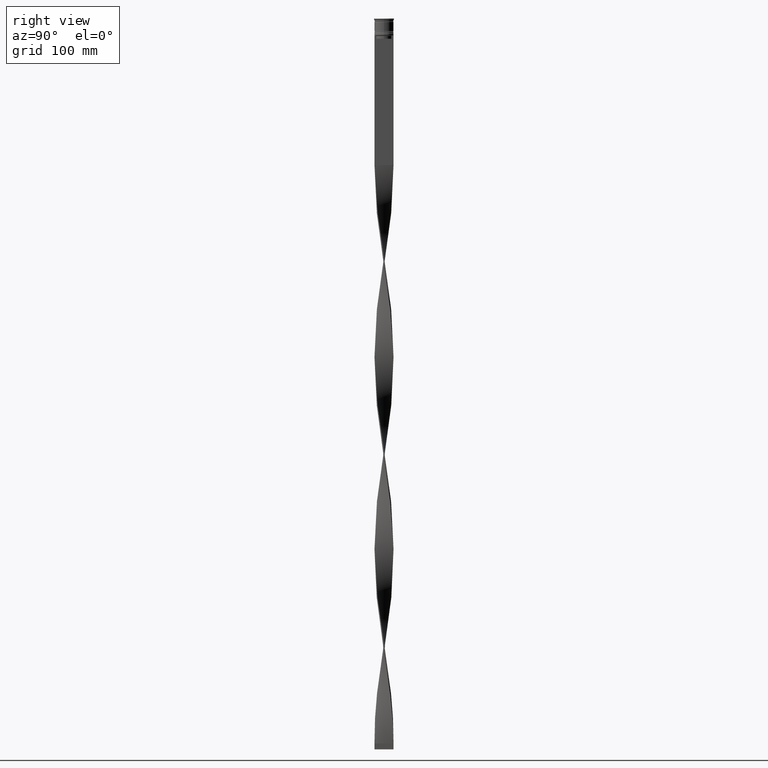
[diagram: clean part render]
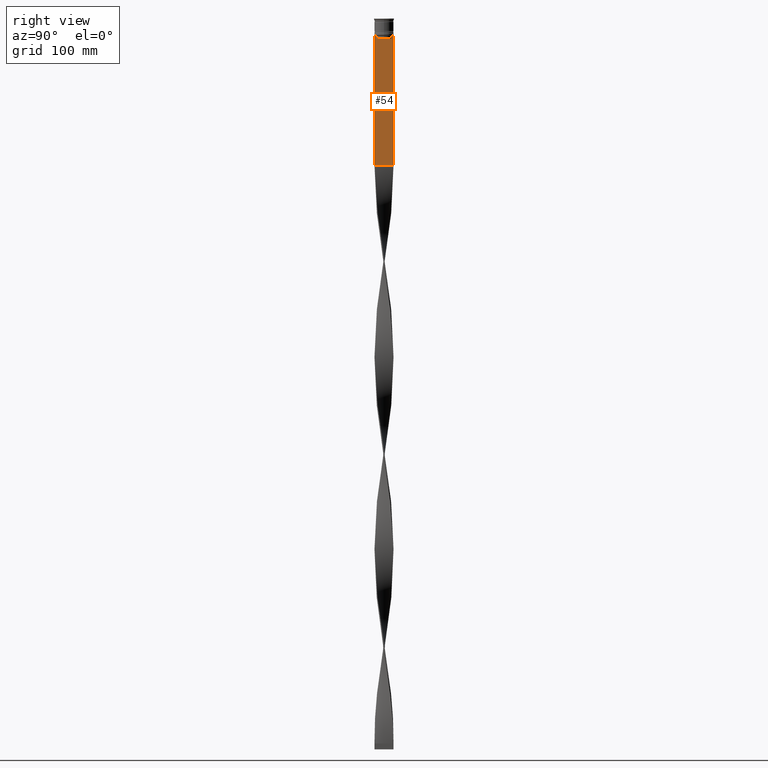
[diagram: same view with one face highlighted and labeled with its STEP entity id]
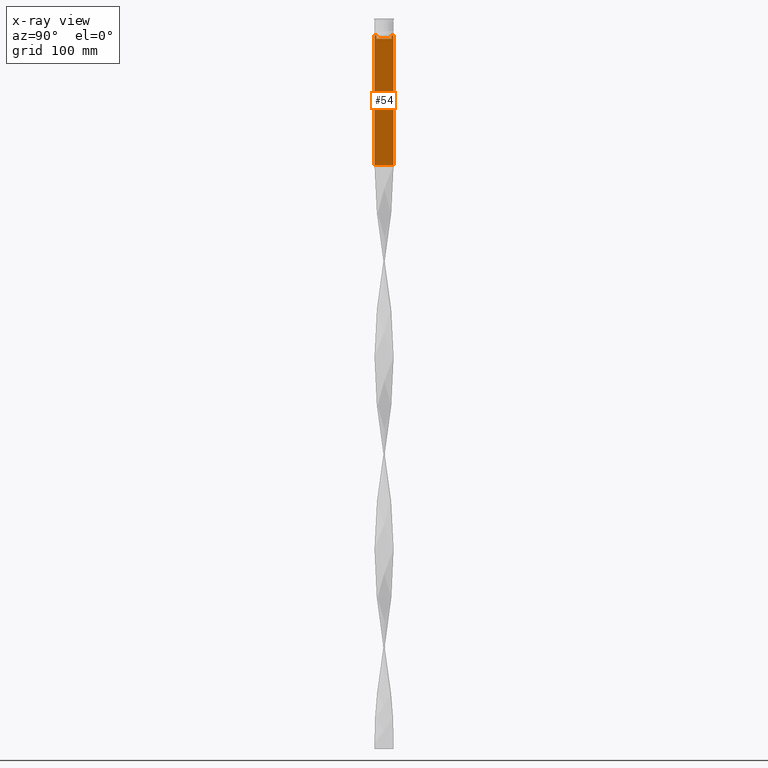
[diagram: x-ray of the same camera — body ghosted, the highlighted face saturated]
A machine part, right view. The second image highlights one B-rep face of the part: STEP entity #54.
The next image is the same camera in x-ray: the body ghosted, the highlighted face saturated — about 0% of this face is hidden behind the body in this view.
In plain terms, the highlighted planar face has unit normal (-1, 0, 0).
Its self-contained STEP definition (entity closure, byte-faithful):
#41 = CARTESIAN_POINT ( 'NONE',  ( 0.5000000000000001110, -6.380438856379708312, -17.00000000000000000 ) ) ;
#54 = ADVANCED_FACE ( 'NONE', ( #2336 ), #3040, .F. ) ;
#139 = ORIENTED_EDGE ( 'NONE', *, *, #3647, .T. ) ;
#404 = AXIS2_PLACEMENT_3D ( 'NONE', #2751, #4413, #1021 ) ;
#477 = LINE ( 'NONE', #4264, #2808 ) ;
#490 = LINE ( 'NONE', #1875, #3097 ) ;
#511 = VERTEX_POINT ( 'NONE', #41 ) ;
#532 = CARTESIAN_POINT ( 'NONE',  ( 0.5000000000000001110, -8.000000000000003553, -14.00000000000000178 ) ) ;
#579 = CARTESIAN_POINT ( 'NONE',  ( 0.5000000000000001110, -6.881860213634098500, -14.00000000000000178 ) ) ;
#639 = CARTESIAN_POINT ( 'NONE',  ( 0.5000000000000001110, -8.000000000000003553, -14.00000000000000178 ) ) ;
#703 = VERTEX_POINT ( 'NONE', #3563 ) ;
#754 = CARTESIAN_POINT ( 'NONE',  ( 0.5000000000000001110, -8.000000000000003553, -123.0000000000000000 ) ) ;
#767 = ORIENTED_EDGE ( 'NONE', *, *, #2829, .F. ) ;
#790 = VECTOR ( 'NONE', #2816, 1000.000000000000000 ) ;
#836 = VERTEX_POINT ( 'NONE', #3611 ) ;
#853 = LINE ( 'NONE', #1488, #1634 ) ;
#1021 = DIRECTION ( 'NONE',  ( 0.000000000000000000, 0.000000000000000000, 1.000000000000000000 ) ) ;
#1144 = ORIENTED_EDGE ( 'NONE', *, *, #3342, .T. ) ;
#1212 = DIRECTION ( 'NONE',  ( 0.000000000000000000, -1.000000000000000000, 0.000000000000000000 ) ) ;
#1235 = EDGE_CURVE ( 'NONE', #2974, #511, #853, .T. ) ;
#1409 = DIRECTION ( 'NONE',  ( 0.000000000000000000, -1.000000000000000000, 0.000000000000000000 ) ) ;
#1434 = LINE ( 'NONE', #754, #3826 ) ;
#1459 = EDGE_CURVE ( 'NONE', #836, #1936, #1492, .T. ) ;
#1488 = CARTESIAN_POINT ( 'NONE',  ( 0.5000000000000001110, 6.399999999999999467, -17.00000000000000000 ) ) ;
#1492 = B_SPLINE_CURVE_WITH_KNOTS ( 'NONE', 3,
 ( #1580, #3029, #2328, #579 ),
 .UNSPECIFIED., .F., .F.,
 ( 4, 4 ),
 ( 0.02996184199614751464, 0.03067452609193705923 ),
 .UNSPECIFIED. ) ;
#1525 = CARTESIAN_POINT ( 'NONE',  ( 0.5000000000000001110, 6.380438856379708312, -14.50000000000000000 ) ) ;
#1562 = ORIENTED_EDGE ( 'NONE', *, *, #1459, .T. ) ;
#1580 = CARTESIAN_POINT ( 'NONE',  ( 0.5000000000000001110, -6.380438856379708312, -14.50000000000000000 ) ) ;
#1630 = CARTESIAN_POINT ( 'NONE',  ( 0.5000000000000001110, 6.380438856379708312, -14.50000000000000000 ) ) ;
#1632 = CARTESIAN_POINT ( 'NONE',  ( 0.5000000000000001110, -8.000000000000003553, -14.00000000000000178 ) ) ;
#1634 = VECTOR ( 'NONE', #2580, 1000.000000000000000 ) ;
#1702 = CARTESIAN_POINT ( 'NONE',  ( 0.5000000000000001110, 6.881860213634098500, -14.00000000000000178 ) ) ;
#1745 = EDGE_CURVE ( 'NONE', #511, #836, #2013, .T. ) ;
#1751 = CARTESIAN_POINT ( 'NONE',  ( 0.5000000000000001110, -7.884161337770806632, -14.00000000000000178 ) ) ;
#1800 = EDGE_CURVE ( 'NONE', #4433, #1893, #3389, .T. ) ;
#1870 = ORIENTED_EDGE ( 'NONE', *, *, #4232, .T. ) ;
#1875 = CARTESIAN_POINT ( 'NONE',  ( 0.5000000000000001110, -8.000000000000003553, 2.031219541881394530 ) ) ;
#1883 = DIRECTION ( 'NONE',  ( 0.000000000000000000, -1.000000000000000000, 0.000000000000000000 ) ) ;
#1893 = VERTEX_POINT ( 'NONE', #1525 ) ;
#1936 = VERTEX_POINT ( 'NONE', #2574 ) ;
#1993 = VERTEX_POINT ( 'NONE', #1751 ) ;
#1995 = VECTOR ( 'NONE', #1409, 1000.000000000000000 ) ;
#2013 = LINE ( 'NONE', #2766, #2361 ) ;
#2085 = LINE ( 'NONE', #4146, #790 ) ;
#2328 = CARTESIAN_POINT ( 'NONE',  ( 0.5000000000000001110, -6.714736947305993908, -14.16668390685738821 ) ) ;
#2336 = FACE_OUTER_BOUND ( 'NONE', #4428, .T. ) ;
#2361 = VECTOR ( 'NONE', #3108, 1000.000000000000000 ) ;
#2432 = LINE ( 'NONE', #639, #1995 ) ;
#2546 = DIRECTION ( 'NONE',  ( 0.000000000000000000, -1.000000000000000000, 0.000000000000000000 ) ) ;
#2573 = LINE ( 'NONE', #4309, #3246 ) ;
#2574 = CARTESIAN_POINT ( 'NONE',  ( 0.5000000000000001110, -6.881860213634098500, -14.00000000000000178 ) ) ;
#2580 = DIRECTION ( 'NONE',  ( 0.000000000000000000, -1.000000000000000000, 0.000000000000000000 ) ) ;
#2596 = EDGE_CURVE ( 'NONE', #3365, #4472, #2432, .T. ) ;
#2751 = CARTESIAN_POINT ( 'NONE',  ( 0.5000000000000001110, -8.000000000000003553, 2.031219541881394530 ) ) ;
#2765 = EDGE_CURVE ( 'NONE', #3135, #703, #1434, .T. ) ;
#2766 = CARTESIAN_POINT ( 'NONE',  ( 0.5000000000000001110, -6.380438856379708312, 0.000000000000000000 ) ) ;
#2808 = VECTOR ( 'NONE', #4199, 1000.000000000000000 ) ;
#2816 = DIRECTION ( 'NONE',  ( 0.000000000000000000, 0.000000000000000000, -1.000000000000000000 ) ) ;
#2829 = EDGE_CURVE ( 'NONE', #3365, #703, #477, .T. ) ;
#2885 = CARTESIAN_POINT ( 'NONE',  ( 0.5000000000000001110, -8.000000000000003553, -14.00000000000000178 ) ) ;
#2892 = CARTESIAN_POINT ( 'NONE',  ( 0.5000000000000001110, 7.884161337770806632, -14.00000000000000178 ) ) ;
#2918 = ORIENTED_EDGE ( 'NONE', *, *, #2596, .T. ) ;
#2924 = EDGE_CURVE ( 'NONE', #4472, #4433, #3224, .T. ) ;
#2974 = VERTEX_POINT ( 'NONE', #4364 ) ;
#3029 = CARTESIAN_POINT ( 'NONE',  ( 0.5000000000000001110, -6.547597841511247019, -14.33335192438652150 ) ) ;
#3040 = PLANE ( 'NONE',  #404 ) ;
#3079 = CARTESIAN_POINT ( 'NONE',  ( 0.5000000000000001110, 6.714736947114692711, -14.16668390704818847 ) ) ;
#3092 = EDGE_CURVE ( 'NONE', #1993, #4011, #3699, .T. ) ;
#3097 = VECTOR ( 'NONE', #3259, 1000.000000000000000 ) ;
#3108 = DIRECTION ( 'NONE',  ( -0.000000000000000000, -0.000000000000000000, 1.000000000000000000 ) ) ;
#3120 = ORIENTED_EDGE ( 'NONE', *, *, #2765, .T. ) ;
#3126 = ORIENTED_EDGE ( 'NONE', *, *, #2924, .T. ) ;
#3131 = ORIENTED_EDGE ( 'NONE', *, *, #3092, .T. ) ;
#3135 = VERTEX_POINT ( 'NONE', #3329 ) ;
#3169 = VECTOR ( 'NONE', #1883, 1000.000000000000000 ) ;
#3224 = LINE ( 'NONE', #2885, #3604 ) ;
#3237 = CARTESIAN_POINT ( 'NONE',  ( 0.5000000000000001110, 7.999999999999996447, -14.00000000000000178 ) ) ;
#3246 = VECTOR ( 'NONE', #1212, 1000.000000000000000 ) ;
#3259 = DIRECTION ( 'NONE',  ( 0.000000000000000000, 0.000000000000000000, -1.000000000000000000 ) ) ;
#3329 = CARTESIAN_POINT ( 'NONE',  ( 0.5000000000000001110, -8.000000000000003553, -123.0000000000000000 ) ) ;
#3342 = EDGE_CURVE ( 'NONE', #4011, #3135, #490, .T. ) ;
#3365 = VERTEX_POINT ( 'NONE', #3237 ) ;
#3380 = ORIENTED_EDGE ( 'NONE', *, *, #1745, .T. ) ;
#3389 = B_SPLINE_CURVE_WITH_KNOTS ( 'NONE', 3,
 ( #1702, #3079, #4456, #1630 ),
 .UNSPECIFIED., .F., .F.,
 ( 4, 4 ),
 ( 0.01172465562756038263, 0.01243276816391822651 ),
 .UNSPECIFIED. ) ;
#3563 = CARTESIAN_POINT ( 'NONE',  ( 0.5000000000000001110, 7.999999999999996447, -123.0000000000000000 ) ) ;
#3566 = DIRECTION ( 'NONE',  ( 0.000000000000000000, 1.000000000000000000, 0.000000000000000000 ) ) ;
#3604 = VECTOR ( 'NONE', #2546, 1000.000000000000000 ) ;
#3611 = CARTESIAN_POINT ( 'NONE',  ( 0.5000000000000001110, -6.380438856379708312, -14.50000000000000000 ) ) ;
#3647 = EDGE_CURVE ( 'NONE', #1936, #1993, #2573, .T. ) ;
#3699 = LINE ( 'NONE', #1632, #3169 ) ;
#3792 = ORIENTED_EDGE ( 'NONE', *, *, #1800, .T. ) ;
#3826 = VECTOR ( 'NONE', #3566, 1000.000000000000000 ) ;
#3917 = CARTESIAN_POINT ( 'NONE',  ( 0.5000000000000001110, 6.881860213634098500, -14.00000000000000178 ) ) ;
#4011 = VERTEX_POINT ( 'NONE', #532 ) ;
#4115 = ORIENTED_EDGE ( 'NONE', *, *, #1235, .T. ) ;
#4146 = CARTESIAN_POINT ( 'NONE',  ( 0.5000000000000001110, 6.380438856379708312, 0.000000000000000000 ) ) ;
#4199 = DIRECTION ( 'NONE',  ( 0.000000000000000000, 0.000000000000000000, -1.000000000000000000 ) ) ;
#4232 = EDGE_CURVE ( 'NONE', #1893, #2974, #2085, .T. ) ;
#4264 = CARTESIAN_POINT ( 'NONE',  ( 0.5000000000000001110, 7.999999999999996447, 2.031219541881394530 ) ) ;
#4309 = CARTESIAN_POINT ( 'NONE',  ( 0.5000000000000001110, -8.000000000000003553, -14.00000000000000178 ) ) ;
#4364 = CARTESIAN_POINT ( 'NONE',  ( 0.5000000000000001110, 6.380438856379708312, -17.00000000000000000 ) ) ;
#4413 = DIRECTION ( 'NONE',  ( -1.000000000000000000, 0.000000000000000000, 0.000000000000000000 ) ) ;
#4428 = EDGE_LOOP ( 'NONE', ( #3126, #3792, #1870, #4115, #3380, #1562, #139, #3131, #1144, #3120, #767, #2918 ) ) ;
#4433 = VERTEX_POINT ( 'NONE', #3917 ) ;
#4456 = CARTESIAN_POINT ( 'NONE',  ( 0.5000000000000001110, 6.547597841304911626, -14.33335192459222718 ) ) ;
#4472 = VERTEX_POINT ( 'NONE', #2892 ) ;